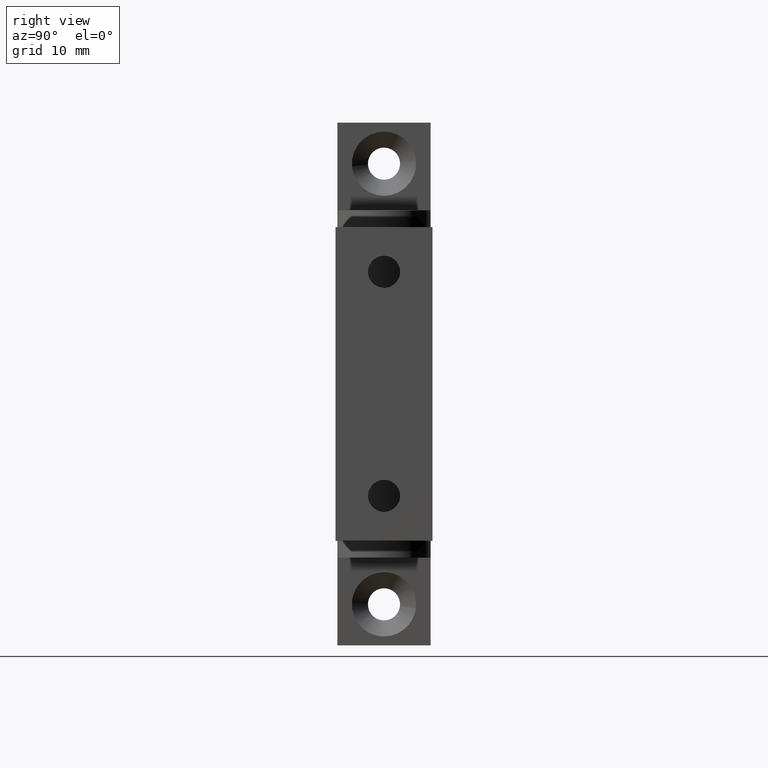
[diagram: clean part render]
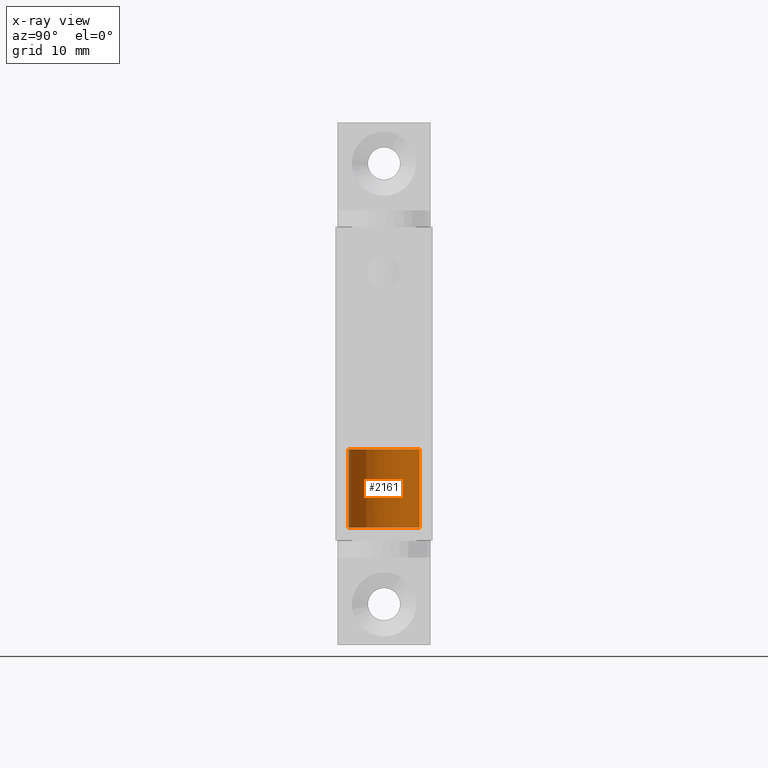
[diagram: x-ray — body ghosted, one internal face saturated and labeled with its STEP entity id]
A machine part, right view, then the same camera in x-ray: the body is ghosted and one INTERNAL B-rep face — a face not visible from any outside direction — is saturated and labeled: STEP entity #2161.
In plain terms, the highlighted face is a freeform B-spline surface patch.
Its self-contained STEP definition (entity closure, byte-faithful):
#2063=CARTESIAN_POINT('',(9.376338556596135,4.747818801904020,-19.512084999999999));
#2064=CARTESIAN_POINT('',(4.628519754692115,4.374157358500157,-19.512085000000003));
#2065=CARTESIAN_POINT('',(5.002181198095980,-0.373661443403864,-19.512084999999999));
#2066=CARTESIAN_POINT('',(5.375842641499846,-5.121480245307884,-19.512085000000003));
#2067=CARTESIAN_POINT('',(10.123661443403870,-4.747818801904020,-19.512084999999999));
#2068=CARTESIAN_POINT('',(9.376338556596135,4.747818801904020,-8.493760374999997));
#2069=CARTESIAN_POINT('',(4.628519754692115,4.374157358500157,-8.493760374999997));
#2070=CARTESIAN_POINT('',(5.002181198095980,-0.373661443403864,-8.493760374999997));
#2071=CARTESIAN_POINT('',(5.375842641499846,-5.121480245307884,-8.493760374999997));
#2072=CARTESIAN_POINT('',(10.123661443403870,-4.747818801904020,-8.493760374999997));
#2080=(BOUNDED_SURFACE()B_SPLINE_SURFACE(2,1,((#2063,#2068),(#2064,#2069),(#2065,#2070),(#2066,#2071),(#2067,#2072)),.UNSPECIFIED.,.F.,.F.,.U.)B_SPLINE_SURFACE_WITH_KNOTS((3,2,3),(2,2),(0.0,7.890768363207459,15.781536726414920),(0.0,11.018324625000011),.UNSPECIFIED.)GEOMETRIC_REPRESENTATION_ITEM()RATIONAL_B_SPLINE_SURFACE(((1.0,1.0),(0.707106781186548,0.707106781186548),(1.0,1.0),(0.707106781186548,0.707106781186548),(1.0,1.0)))REPRESENTATION_ITEM('')SURFACE());
#2081=CARTESIAN_POINT('',(4.987500000000000,0.0,-19.249900000000000));
#2082=VERTEX_POINT('',#2081);
#2083=CARTESIAN_POINT('',(9.376338556493373,4.747818801895933,-19.249900000000000));
#2084=VERTEX_POINT('',#2083);
#2085=CARTESIAN_POINT('',(4.987500000000000,0.0,-19.249900000000000));
#2086=CARTESIAN_POINT('',(4.987500000000001,4.402409716331044,-19.249900000000004));
#2087=CARTESIAN_POINT('',(9.376338556493373,4.747818801895934,-19.249899999999997));
#2095=(BOUNDED_CURVE()B_SPLINE_CURVE(2,(#2085,#2086,#2087),.UNSPECIFIED.,.F.,.U.)B_SPLINE_CURVE_WITH_KNOTS((3,3),(0.0,0.236331300625346),.UNSPECIFIED.)CURVE()GEOMETRIC_REPRESENTATION_ITEM()RATIONAL_B_SPLINE_CURVE((1.0,0.723120658613891,0.969723356156329))REPRESENTATION_ITEM(''));
#2096=EDGE_CURVE('',#2082,#2084,#2095,.T.);
#2097=ORIENTED_EDGE('',*,*,#2096,.T.);
#2098=CARTESIAN_POINT('',(9.376338556493373,4.747818801895933,-8.762499999999999));
#2099=VERTEX_POINT('',#2098);
#2100=CARTESIAN_POINT('',(9.376338556493373,4.747818801895933,-19.249900000000000));
#2101=CARTESIAN_POINT('',(9.376338556493373,4.747818801895933,-8.762499999999999));
#2102=QUASI_UNIFORM_CURVE('',1,(#2100,#2101),.UNSPECIFIED.,.F.,.U.);
#2103=EDGE_CURVE('',#2084,#2099,#2102,.T.);
#2104=ORIENTED_EDGE('',*,*,#2103,.T.);
#2105=CARTESIAN_POINT('',(4.987500000000000,0.0,-8.762499999999999));
#2106=VERTEX_POINT('',#2105);
#2107=CARTESIAN_POINT('',(4.987500000000000,0.0,-8.762499999999999));
#2108=CARTESIAN_POINT('',(4.987500000000001,4.402409716331044,-8.762499999999998));
#2109=CARTESIAN_POINT('',(9.376338556493373,4.747818801895934,-8.762499999999999));
#2117=(BOUNDED_CURVE()B_SPLINE_CURVE(2,(#2107,#2108,#2109),.UNSPECIFIED.,.F.,.U.)B_SPLINE_CURVE_WITH_KNOTS((3,3),(0.0,0.236331300625346),.UNSPECIFIED.)CURVE()GEOMETRIC_REPRESENTATION_ITEM()RATIONAL_B_SPLINE_CURVE((1.0,0.723120658613891,0.969723356156329))REPRESENTATION_ITEM(''));
#2118=EDGE_CURVE('',#2106,#2099,#2117,.T.);
#2119=ORIENTED_EDGE('',*,*,#2118,.F.);
#2120=CARTESIAN_POINT('',(10.123661443506631,-4.747818801895933,-8.762499999999999));
#2121=VERTEX_POINT('',#2120);
#2122=CARTESIAN_POINT('',(10.123661443506627,-4.747818801895933,-8.762499999999999));
#2123=CARTESIAN_POINT('',(9.937119134727267,-4.762500000000000,-8.762499999999999));
#2124=CARTESIAN_POINT('',(9.750000000000000,-4.762500000000000,-8.762499999999999));
#2125=CARTESIAN_POINT('',(4.987500000000000,-4.762500000000000,-8.762499999999998));
#2126=CARTESIAN_POINT('',(4.987500000000000,0.0,-8.762499999999999));
#2134=(BOUNDED_CURVE()B_SPLINE_CURVE(2,(#2122,#2123,#2124,#2125,#2126),.UNSPECIFIED.,.F.,.U.)B_SPLINE_CURVE_WITH_KNOTS((3,2,3),(0.736331300625346,0.750000000000000,1.0),.UNSPECIFIED.)CURVE()GEOMETRIC_REPRESENTATION_ITEM()RATIONAL_B_SPLINE_CURVE((0.969723356156329,0.983986122572657,1.0,0.707106781186548,1.0))REPRESENTATION_ITEM(''));
#2135=EDGE_CURVE('',#2121,#2106,#2134,.T.);
#2136=ORIENTED_EDGE('',*,*,#2135,.F.);
#2137=CARTESIAN_POINT('',(10.123661443506631,-4.747818801895933,-19.249900000000000));
#2138=VERTEX_POINT('',#2137);
#2139=CARTESIAN_POINT('',(10.123661443506631,-4.747818801895933,-19.249900000000000));
#2140=CARTESIAN_POINT('',(10.123661443506631,-4.747818801895933,-8.762499999999999));
#2141=QUASI_UNIFORM_CURVE('',1,(#2139,#2140),.UNSPECIFIED.,.F.,.U.);
#2142=EDGE_CURVE('',#2138,#2121,#2141,.T.);
#2143=ORIENTED_EDGE('',*,*,#2142,.F.);
#2144=CARTESIAN_POINT('',(10.123661443506627,-4.747818801895934,-19.249900000000007));
#2145=CARTESIAN_POINT('',(9.937119134727269,-4.762500000000001,-19.249899999999997));
#2146=CARTESIAN_POINT('',(9.750000000000000,-4.762500000000000,-19.249900000000000));
#2147=CARTESIAN_POINT('',(4.987500000000000,-4.762500000000000,-19.249899999999997));
#2148=CARTESIAN_POINT('',(4.987500000000000,0.0,-19.249900000000000));
#2156=(BOUNDED_CURVE()B_SPLINE_CURVE(2,(#2144,#2145,#2146,#2147,#2148),.UNSPECIFIED.,.F.,.U.)B_SPLINE_CURVE_WITH_KNOTS((3,2,3),(0.736331300625346,0.750000000000000,1.0),.UNSPECIFIED.)CURVE()GEOMETRIC_REPRESENTATION_ITEM()RATIONAL_B_SPLINE_CURVE((0.969723356156329,0.983986122572657,1.0,0.707106781186548,1.0))REPRESENTATION_ITEM(''));
#2157=EDGE_CURVE('',#2138,#2082,#2156,.T.);
#2158=ORIENTED_EDGE('',*,*,#2157,.T.);
#2159=EDGE_LOOP('',(#2097,#2104,#2119,#2136,#2143,#2158));
#2160=FACE_OUTER_BOUND('',#2159,.T.);
#2161=ADVANCED_FACE('',(#2160),#2080,.F.);